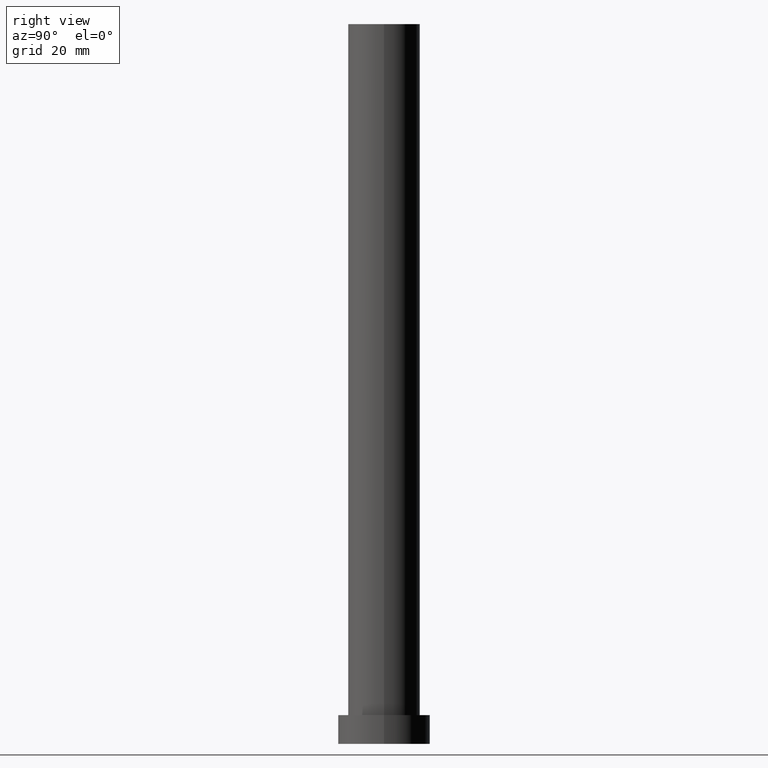
[diagram: clean part render]
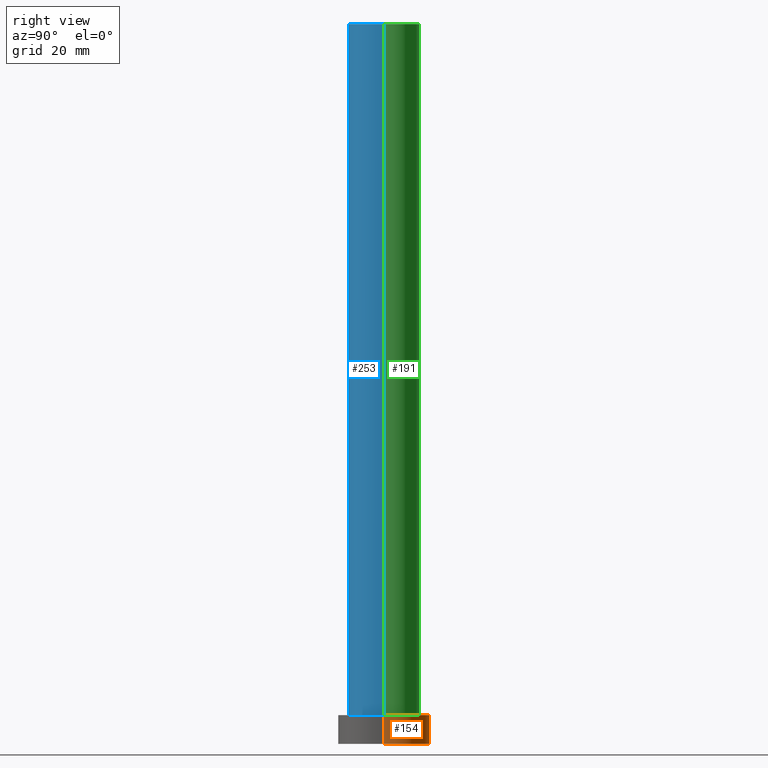
[diagram: same view with three faces highlighted in distinct colors, each labeled with its STEP entity id]
A machine part, right view with three faces highlighted in distinct colors.
Their STEP definitions:

[orange] entity #154 — the highlighted cylindrical surface (partial cylindrical patch) has radius 16 mm, axis along (-0, -0, -1).
#3 = EDGE_CURVE ( 'NONE', #232, #156, #172, .T. ) ;
#4 = EDGE_LOOP ( 'NONE', ( #92, #133, #21, #216 ) ) ;
#7 = CYLINDRICAL_SURFACE ( 'NONE', #42, 16.00000000000000000 ) ;
#21 = ORIENTED_EDGE ( 'NONE', *, *, #69, .T. ) ;
#29 = DIRECTION ( 'NONE',  ( 0.000000000000000000, 0.000000000000000000, 1.000000000000000000 ) ) ;
#32 = CARTESIAN_POINT ( 'NONE',  ( 16.00000000000000000, 1.959434878635765131E-15, 10.00000000000000000 ) ) ;
#39 = VERTEX_POINT ( 'NONE', #146 ) ;
#42 = AXIS2_PLACEMENT_3D ( 'NONE', #162, #185, #190 ) ;
#43 = VECTOR ( 'NONE', #210, 1000.000000000000000 ) ;
#54 = CARTESIAN_POINT ( 'NONE',  ( 16.00000000000000000, 1.959434878635765131E-15, 10.00000000000000000 ) ) ;
#55 = CARTESIAN_POINT ( 'NONE',  ( -16.00000000000000000, 0.000000000000000000, 10.00000000000000000 ) ) ;
#69 = EDGE_CURVE ( 'NONE', #39, #77, #84, .T. ) ;
#74 = CARTESIAN_POINT ( 'NONE',  ( -16.00000000000000000, 0.000000000000000000, 10.00000000000000000 ) ) ;
#77 = VERTEX_POINT ( 'NONE', #204 ) ;
#79 = VECTOR ( 'NONE', #147, 1000.000000000000000 ) ;
#84 = CIRCLE ( 'NONE', #201, 16.00000000000000000 ) ;
#92 = ORIENTED_EDGE ( 'NONE', *, *, #3, .F. ) ;
#93 = EDGE_CURVE ( 'NONE', #232, #39, #108, .T. ) ;
#102 = DIRECTION ( 'NONE',  ( 1.000000000000000000, 0.000000000000000000, 0.000000000000000000 ) ) ;
#108 = LINE ( 'NONE', #32, #79 ) ;
#120 = CARTESIAN_POINT ( 'NONE',  ( 0.000000000000000000, 0.000000000000000000, 0.000000000000000000 ) ) ;
#128 = FACE_OUTER_BOUND ( 'NONE', #4, .T. ) ;
#133 = ORIENTED_EDGE ( 'NONE', *, *, #93, .T. ) ;
#135 = EDGE_CURVE ( 'NONE', #156, #77, #246, .T. ) ;
#142 = CARTESIAN_POINT ( 'NONE',  ( 0.000000000000000000, 0.000000000000000000, 10.00000000000000000 ) ) ;
#146 = CARTESIAN_POINT ( 'NONE',  ( 16.00000000000000000, 1.959434878635765131E-15, 0.000000000000000000 ) ) ;
#147 = DIRECTION ( 'NONE',  ( -0.000000000000000000, -0.000000000000000000, -1.000000000000000000 ) ) ;
#153 = AXIS2_PLACEMENT_3D ( 'NONE', #142, #205, #102 ) ;
#154 = ADVANCED_FACE ( 'NONE', ( #128 ), #7, .T. ) ;
#156 = VERTEX_POINT ( 'NONE', #74 ) ;
#162 = CARTESIAN_POINT ( 'NONE',  ( 0.000000000000000000, 0.000000000000000000, 10.00000000000000000 ) ) ;
#172 = CIRCLE ( 'NONE', #153, 16.00000000000000000 ) ;
#185 = DIRECTION ( 'NONE',  ( -0.000000000000000000, -0.000000000000000000, -1.000000000000000000 ) ) ;
#187 = DIRECTION ( 'NONE',  ( 1.000000000000000000, 0.000000000000000000, 0.000000000000000000 ) ) ;
#190 = DIRECTION ( 'NONE',  ( -1.000000000000000000, 0.000000000000000000, 0.000000000000000000 ) ) ;
#201 = AXIS2_PLACEMENT_3D ( 'NONE', #120, #29, #187 ) ;
#204 = CARTESIAN_POINT ( 'NONE',  ( -16.00000000000000000, 0.000000000000000000, 0.000000000000000000 ) ) ;
#205 = DIRECTION ( 'NONE',  ( 0.000000000000000000, 0.000000000000000000, 1.000000000000000000 ) ) ;
#210 = DIRECTION ( 'NONE',  ( -0.000000000000000000, -0.000000000000000000, -1.000000000000000000 ) ) ;
#216 = ORIENTED_EDGE ( 'NONE', *, *, #135, .F. ) ;
#232 = VERTEX_POINT ( 'NONE', #54 ) ;
#246 = LINE ( 'NONE', #55, #43 ) ;

[blue] entity #253 — the highlighted cylindrical surface (edge-blend (fillet) strip) has radius 12.5 mm, axis along (-0, -0, -1).
#6 = DIRECTION ( 'NONE',  ( 1.000000000000000000, 0.000000000000000000, 0.000000000000000000 ) ) ;
#12 = DIRECTION ( 'NONE',  ( -0.000000000000000000, -0.000000000000000000, -1.000000000000000000 ) ) ;
#16 = DIRECTION ( 'NONE',  ( -0.000000000000000000, -0.000000000000000000, -1.000000000000000000 ) ) ;
#26 = LINE ( 'NONE', #76, #88 ) ;
#34 = AXIS2_PLACEMENT_3D ( 'NONE', #188, #126, #6 ) ;
#38 = ORIENTED_EDGE ( 'NONE', *, *, #105, .T. ) ;
#41 = VERTEX_POINT ( 'NONE', #72 ) ;
#45 = CIRCLE ( 'NONE', #59, 12.50000000000000000 ) ;
#59 = AXIS2_PLACEMENT_3D ( 'NONE', #87, #101, #91 ) ;
#72 = CARTESIAN_POINT ( 'NONE',  ( 12.50000000000000000, 1.530808498934191521E-15, 10.00000000000000000 ) ) ;
#76 = CARTESIAN_POINT ( 'NONE',  ( -12.50000000000000000, 0.000000000000000000, 250.0000000000000000 ) ) ;
#78 = ORIENTED_EDGE ( 'NONE', *, *, #207, .F. ) ;
#85 = CARTESIAN_POINT ( 'NONE',  ( 0.000000000000000000, 0.000000000000000000, 250.0000000000000000 ) ) ;
#87 = CARTESIAN_POINT ( 'NONE',  ( 0.000000000000000000, 0.000000000000000000, 10.00000000000000000 ) ) ;
#88 = VECTOR ( 'NONE', #12, 1000.000000000000000 ) ;
#91 = DIRECTION ( 'NONE',  ( 1.000000000000000000, 0.000000000000000000, 0.000000000000000000 ) ) ;
#94 = VERTEX_POINT ( 'NONE', #169 ) ;
#101 = DIRECTION ( 'NONE',  ( 0.000000000000000000, 0.000000000000000000, 1.000000000000000000 ) ) ;
#105 = EDGE_CURVE ( 'NONE', #94, #175, #26, .T. ) ;
#109 = FACE_OUTER_BOUND ( 'NONE', #199, .T. ) ;
#113 = AXIS2_PLACEMENT_3D ( 'NONE', #85, #242, #139 ) ;
#115 = EDGE_CURVE ( 'NONE', #175, #41, #45, .T. ) ;
#126 = DIRECTION ( 'NONE',  ( 0.000000000000000000, 0.000000000000000000, 1.000000000000000000 ) ) ;
#136 = EDGE_CURVE ( 'NONE', #219, #41, #227, .T. ) ;
#139 = DIRECTION ( 'NONE',  ( -1.000000000000000000, 0.000000000000000000, 0.000000000000000000 ) ) ;
#166 = CARTESIAN_POINT ( 'NONE',  ( -12.50000000000000000, 0.000000000000000000, 10.00000000000000000 ) ) ;
#169 = CARTESIAN_POINT ( 'NONE',  ( -12.50000000000000000, 0.000000000000000000, 250.0000000000000000 ) ) ;
#175 = VERTEX_POINT ( 'NONE', #166 ) ;
#179 = ORIENTED_EDGE ( 'NONE', *, *, #115, .T. ) ;
#188 = CARTESIAN_POINT ( 'NONE',  ( 0.000000000000000000, 0.000000000000000000, 250.0000000000000000 ) ) ;
#189 = CYLINDRICAL_SURFACE ( 'NONE', #113, 12.50000000000000000 ) ;
#194 = ORIENTED_EDGE ( 'NONE', *, *, #136, .F. ) ;
#195 = VECTOR ( 'NONE', #16, 1000.000000000000000 ) ;
#199 = EDGE_LOOP ( 'NONE', ( #194, #78, #38, #179 ) ) ;
#203 = CARTESIAN_POINT ( 'NONE',  ( 12.50000000000000000, 1.530808498934191521E-15, 250.0000000000000000 ) ) ;
#207 = EDGE_CURVE ( 'NONE', #94, #219, #245, .T. ) ;
#219 = VERTEX_POINT ( 'NONE', #203 ) ;
#226 = CARTESIAN_POINT ( 'NONE',  ( 12.50000000000000000, 1.530808498934191521E-15, 250.0000000000000000 ) ) ;
#227 = LINE ( 'NONE', #226, #195 ) ;
#242 = DIRECTION ( 'NONE',  ( -0.000000000000000000, -0.000000000000000000, -1.000000000000000000 ) ) ;
#245 = CIRCLE ( 'NONE', #34, 12.50000000000000000 ) ;
#253 = ADVANCED_FACE ( 'NONE', ( #109 ), #189, .T. ) ;

[green] entity #191 — the highlighted cylindrical surface (edge-blend (fillet) strip) has radius 12.5 mm, axis along (-0, -0, -1).
#12 = DIRECTION ( 'NONE',  ( -0.000000000000000000, -0.000000000000000000, -1.000000000000000000 ) ) ;
#16 = DIRECTION ( 'NONE',  ( -0.000000000000000000, -0.000000000000000000, -1.000000000000000000 ) ) ;
#17 = EDGE_LOOP ( 'NONE', ( #155, #61, #197, #116 ) ) ;
#26 = LINE ( 'NONE', #76, #88 ) ;
#41 = VERTEX_POINT ( 'NONE', #72 ) ;
#48 = DIRECTION ( 'NONE',  ( 0.000000000000000000, 0.000000000000000000, 1.000000000000000000 ) ) ;
#50 = CYLINDRICAL_SURFACE ( 'NONE', #134, 12.50000000000000000 ) ;
#61 = ORIENTED_EDGE ( 'NONE', *, *, #136, .T. ) ;
#64 = CARTESIAN_POINT ( 'NONE',  ( 0.000000000000000000, 0.000000000000000000, 10.00000000000000000 ) ) ;
#72 = CARTESIAN_POINT ( 'NONE',  ( 12.50000000000000000, 1.530808498934191521E-15, 10.00000000000000000 ) ) ;
#76 = CARTESIAN_POINT ( 'NONE',  ( -12.50000000000000000, 0.000000000000000000, 250.0000000000000000 ) ) ;
#88 = VECTOR ( 'NONE', #12, 1000.000000000000000 ) ;
#90 = DIRECTION ( 'NONE',  ( 1.000000000000000000, 0.000000000000000000, 0.000000000000000000 ) ) ;
#94 = VERTEX_POINT ( 'NONE', #169 ) ;
#105 = EDGE_CURVE ( 'NONE', #94, #175, #26, .T. ) ;
#106 = DIRECTION ( 'NONE',  ( -0.000000000000000000, -0.000000000000000000, -1.000000000000000000 ) ) ;
#116 = ORIENTED_EDGE ( 'NONE', *, *, #105, .F. ) ;
#122 = DIRECTION ( 'NONE',  ( 1.000000000000000000, 0.000000000000000000, 0.000000000000000000 ) ) ;
#125 = DIRECTION ( 'NONE',  ( 0.000000000000000000, 0.000000000000000000, 1.000000000000000000 ) ) ;
#134 = AXIS2_PLACEMENT_3D ( 'NONE', #249, #106, #248 ) ;
#136 = EDGE_CURVE ( 'NONE', #219, #41, #227, .T. ) ;
#145 = EDGE_CURVE ( 'NONE', #219, #94, #180, .T. ) ;
#152 = CIRCLE ( 'NONE', #161, 12.50000000000000000 ) ;
#155 = ORIENTED_EDGE ( 'NONE', *, *, #145, .F. ) ;
#161 = AXIS2_PLACEMENT_3D ( 'NONE', #64, #125, #90 ) ;
#166 = CARTESIAN_POINT ( 'NONE',  ( -12.50000000000000000, 0.000000000000000000, 10.00000000000000000 ) ) ;
#169 = CARTESIAN_POINT ( 'NONE',  ( -12.50000000000000000, 0.000000000000000000, 250.0000000000000000 ) ) ;
#175 = VERTEX_POINT ( 'NONE', #166 ) ;
#180 = CIRCLE ( 'NONE', #225, 12.50000000000000000 ) ;
#182 = CARTESIAN_POINT ( 'NONE',  ( 0.000000000000000000, 0.000000000000000000, 250.0000000000000000 ) ) ;
#191 = ADVANCED_FACE ( 'NONE', ( #228 ), #50, .T. ) ;
#195 = VECTOR ( 'NONE', #16, 1000.000000000000000 ) ;
#197 = ORIENTED_EDGE ( 'NONE', *, *, #233, .T. ) ;
#203 = CARTESIAN_POINT ( 'NONE',  ( 12.50000000000000000, 1.530808498934191521E-15, 250.0000000000000000 ) ) ;
#219 = VERTEX_POINT ( 'NONE', #203 ) ;
#225 = AXIS2_PLACEMENT_3D ( 'NONE', #182, #48, #122 ) ;
#226 = CARTESIAN_POINT ( 'NONE',  ( 12.50000000000000000, 1.530808498934191521E-15, 250.0000000000000000 ) ) ;
#227 = LINE ( 'NONE', #226, #195 ) ;
#228 = FACE_OUTER_BOUND ( 'NONE', #17, .T. ) ;
#233 = EDGE_CURVE ( 'NONE', #41, #175, #152, .T. ) ;
#248 = DIRECTION ( 'NONE',  ( -1.000000000000000000, 0.000000000000000000, 0.000000000000000000 ) ) ;
#249 = CARTESIAN_POINT ( 'NONE',  ( 0.000000000000000000, 0.000000000000000000, 250.0000000000000000 ) ) ;